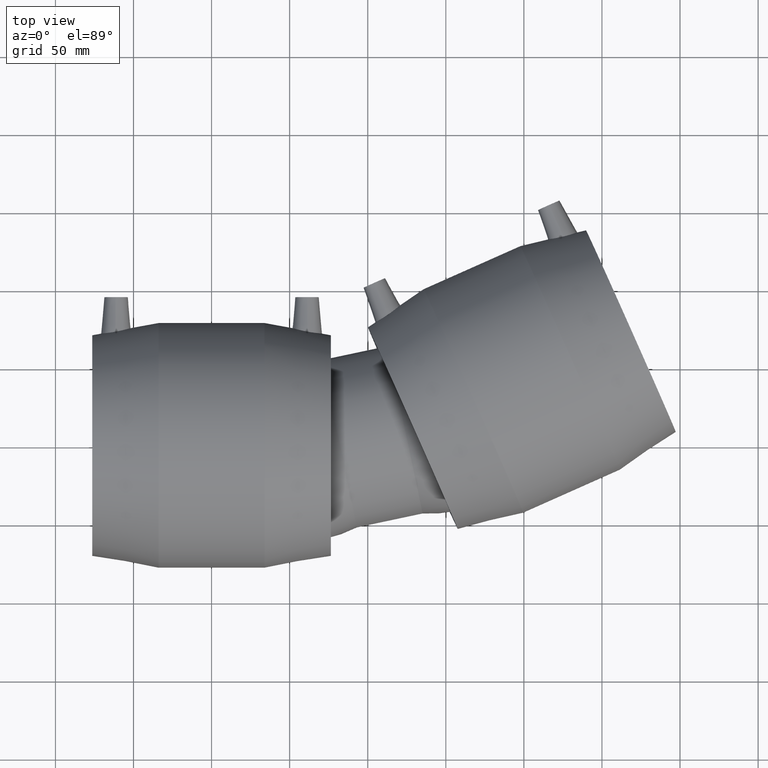
[diagram: clean part render]
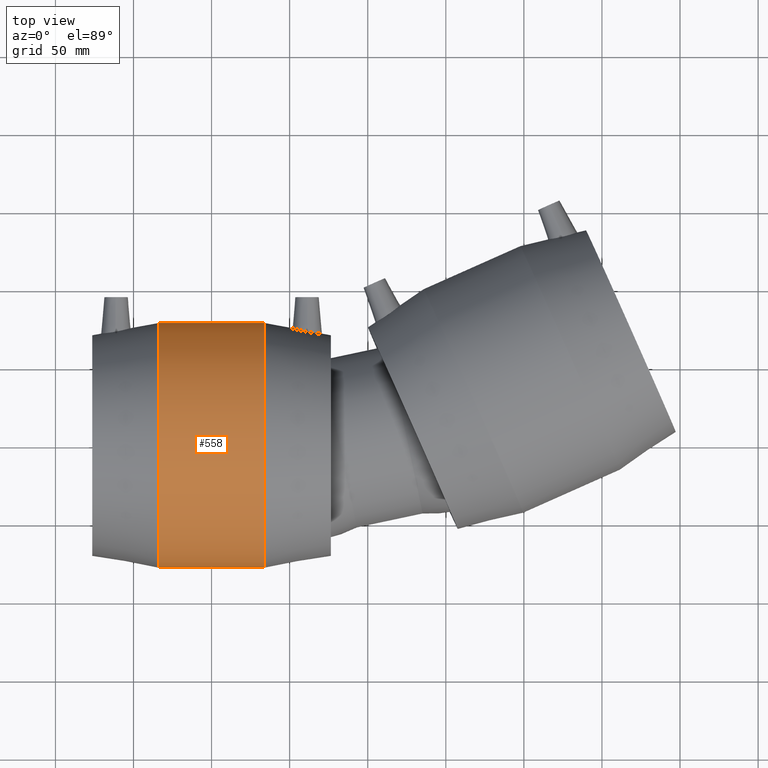
[diagram: same view with one face highlighted and labeled with its STEP entity id]
A machine part, top view. The second image highlights one B-rep face of the part: STEP entity #558.
In plain terms, the highlighted cylindrical surface (bore or boss wall) has radius 78.5 mm, axis along (1, 0, 0).
Its self-contained STEP definition (entity closure, byte-faithful):
#52=CYLINDRICAL_SURFACE('',#628,78.5);
#78=FACE_BOUND('',#196,.T.);
#130=FACE_OUTER_BOUND('',#195,.T.);
#195=EDGE_LOOP('',(#467));
#196=EDGE_LOOP('',(#468));
#289=CIRCLE('',#629,78.5);
#290=CIRCLE('',#630,78.5);
#340=VERTEX_POINT('',#1241);
#341=VERTEX_POINT('',#1243);
#395=EDGE_CURVE('',#340,#340,#289,.T.);
#396=EDGE_CURVE('',#341,#341,#290,.T.);
#467=ORIENTED_EDGE('',*,*,#395,.F.);
#468=ORIENTED_EDGE('',*,*,#396,.T.);
#558=ADVANCED_FACE('',(#130,#78),#52,.T.);
#628=AXIS2_PLACEMENT_3D('',#1240,#763,#764);
#629=AXIS2_PLACEMENT_3D('',#1242,#765,#766);
#630=AXIS2_PLACEMENT_3D('',#1244,#767,#768);
#763=DIRECTION('center_axis',(1.,1.83697019872103E-16,0.));
#764=DIRECTION('ref_axis',(-1.79891298841636E-16,1.,0.));
#765=DIRECTION('center_axis',(1.,1.83697019872103E-16,0.));
#766=DIRECTION('ref_axis',(0.,0.,-1.));
#767=DIRECTION('center_axis',(1.,1.83697019872103E-16,0.));
#768=DIRECTION('ref_axis',(0.,0.,-1.));
#1240=CARTESIAN_POINT('Origin',(0.,1.40344523182287E-14,0.));
#1241=CARTESIAN_POINT('',(33.9,78.5,0.));
#1242=CARTESIAN_POINT('Origin',(33.9,2.0261781291893E-14,0.));
#1243=CARTESIAN_POINT('',(-33.9,78.5,0.));
#1244=CARTESIAN_POINT('Origin',(-33.9,7.80712334456438E-15,0.));